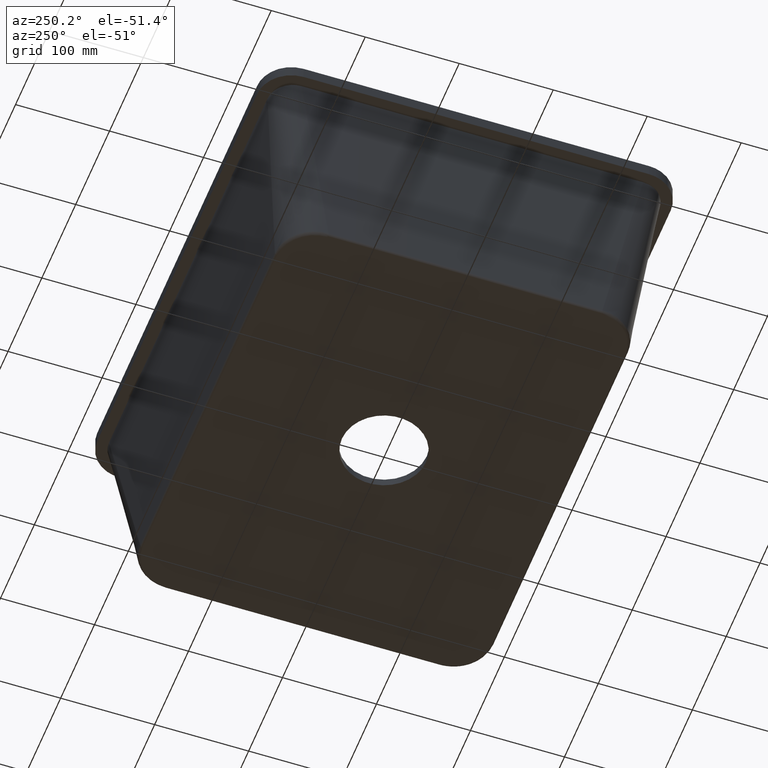
[diagram: clean part render]
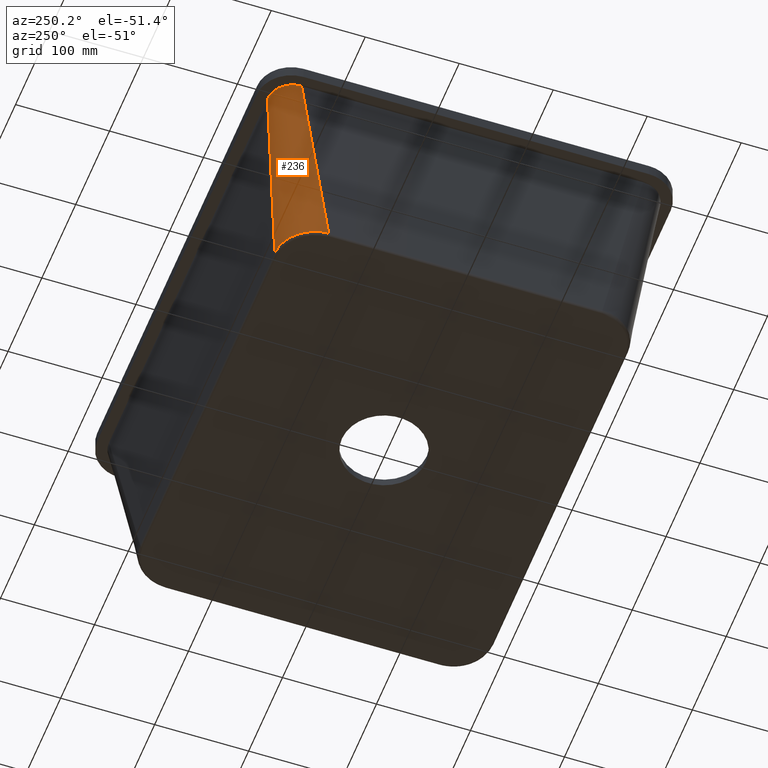
[diagram: same view with one face highlighted and labeled with its STEP entity id]
A machine part, auxiliary view. The second image highlights one B-rep face of the part: STEP entity #236.
In plain terms, the highlighted face is a freeform B-spline surface patch.
Its self-contained STEP definition (entity closure, byte-faithful):
#155=B_SPLINE_SURFACE_WITH_KNOTS('',3,3,((#16675,#16676,#16677,#16678,#16679,
#16680,#16681,#16682,#16683,#16684),(#16685,#16686,#16687,#16688,#16689,
#16690,#16691,#16692,#16693,#16694),(#16695,#16696,#16697,#16698,#16699,
#16700,#16701,#16702,#16703,#16704),(#16705,#16706,#16707,#16708,#16709,
#16710,#16711,#16712,#16713,#16714)),.UNSPECIFIED.,.F.,.F.,.F.,(4,4),(4,
2,2,2,4),(0.,1.),(0.,0.25,0.5,0.75,1.),.UNSPECIFIED.);
#236=ADVANCED_FACE('',(#306),#155,.T.);
#306=FACE_OUTER_BOUND('',#378,.T.);
#378=EDGE_LOOP('',(#730,#731,#732,#733,#734,#735));
#730=ORIENTED_EDGE('',*,*,#1060,.F.);
#731=ORIENTED_EDGE('',*,*,#1021,.T.);
#732=ORIENTED_EDGE('',*,*,#1038,.T.);
#733=ORIENTED_EDGE('',*,*,#1042,.T.);
#734=ORIENTED_EDGE('',*,*,#1061,.F.);
#735=ORIENTED_EDGE('',*,*,#1062,.F.);
#847=VERTEX_POINT('',#15982);
#856=VERTEX_POINT('',#16190);
#865=VERTEX_POINT('',#16397);
#868=VERTEX_POINT('',#16409);
#879=VERTEX_POINT('',#16659);
#880=VERTEX_POINT('',#16670);
#1021=EDGE_CURVE('',#856,#847,#1180,.T.);
#1038=EDGE_CURVE('',#847,#865,#1185,.T.);
#1042=EDGE_CURVE('',#865,#868,#1188,.T.);
#1060=EDGE_CURVE('',#856,#879,#1202,.T.);
#1061=EDGE_CURVE('',#880,#868,#1203,.T.);
#1062=EDGE_CURVE('',#879,#880,#1204,.T.);
#1180=B_SPLINE_CURVE_WITH_KNOTS('',3,(#16191,#16192,#16193,#16194,#16195,
#16196,#16197,#16198,#16199,#16200),.UNSPECIFIED.,.F.,.F.,(4,2,2,2,4),(0.,
0.25,0.5,0.75,1.),.UNSPECIFIED.);
#1185=B_SPLINE_CURVE_WITH_KNOTS('',3,(#16393,#16394,#16395,#16396),
 .UNSPECIFIED.,.F.,.F.,(4,4),(0.,1.),.UNSPECIFIED.);
#1188=B_SPLINE_CURVE_WITH_KNOTS('',3,(#16410,#16411,#16412,#16413),
 .UNSPECIFIED.,.F.,.F.,(4,4),(0.,1.),.UNSPECIFIED.);
#1202=B_SPLINE_CURVE_WITH_KNOTS('',3,(#16651,#16652,#16653,#16654,#16655,
#16656,#16657,#16658),.UNSPECIFIED.,.F.,.F.,(4,2,2,4),(0.,0.284659297360173,
0.954545454545455,1.),.UNSPECIFIED.);
#1203=B_SPLINE_CURVE_WITH_KNOTS('',3,(#16660,#16661,#16662,#16663,#16664,
#16665,#16666,#16667,#16668,#16669),.UNSPECIFIED.,.F.,.F.,(4,2,2,2,4),(0.,
0.25,0.5,0.75,1.),.UNSPECIFIED.);
#1204=B_SPLINE_CURVE_WITH_KNOTS('',3,(#16671,#16672,#16673,#16674),
 .UNSPECIFIED.,.F.,.F.,(4,4),(0.,1.),.UNSPECIFIED.);
#15982=CARTESIAN_POINT('',(-240.858488755988,145.678859501032,-210.301110715676));
#16190=CARTESIAN_POINT('',(-198.805185604876,187.769871966777,-210.309423620474));
#16191=CARTESIAN_POINT('',(-198.805185604876,187.769871966776,-210.309423620474));
#16192=CARTESIAN_POINT('',(-204.636013927469,187.762406410837,-210.381419482213));
#16193=CARTESIAN_POINT('',(-210.320129027172,186.53786679714,-210.444259691139));
#16194=CARTESIAN_POINT('',(-220.450157708189,182.18859490304,-210.514803546419));
#16195=CARTESIAN_POINT('',(-224.886784518648,179.097653143368,-210.524022454617));
#16196=CARTESIAN_POINT('',(-232.169132503345,171.815486642678,-210.52262285694));
#16197=CARTESIAN_POINT('',(-235.258655507471,167.383575708731,-210.511993057559));
#16198=CARTESIAN_POINT('',(-239.618382160683,157.238736954726,-210.438689009317));
#16199=CARTESIAN_POINT('',(-240.85108658701,151.53761313181,-210.374486940463));
#16200=CARTESIAN_POINT('',(-240.858488755988,145.678859501033,-210.301110715671));
#16393=CARTESIAN_POINT('',(-240.858488755987,145.67885950103,-210.301110715686));
#16394=CARTESIAN_POINT('',(-242.342657451127,148.359136166055,-195.588842444041));
#16395=CARTESIAN_POINT('',(-243.826826146267,151.039412831081,-180.876574172395));
#16396=CARTESIAN_POINT('',(-245.310994841408,153.719689496106,-166.164305900748));
#16397=CARTESIAN_POINT('',(-245.310994841408,153.719689496106,-166.164305900748));
#16409=CARTESIAN_POINT('',(-260.762158715936,181.623117264112,-12.9999999996923));
#16410=CARTESIAN_POINT('',(-245.310994841408,153.719689496106,-166.164305900748));
#16411=CARTESIAN_POINT('',(-250.461382799603,163.020832085477,-115.109537266869));
#16412=CARTESIAN_POINT('',(-255.6117707578,172.32197467485,-64.0547686329767));
#16413=CARTESIAN_POINT('',(-260.762158715998,181.623117264224,-12.9999999990768));
#16651=CARTESIAN_POINT('',(-195.03983363599,185.592574121763,-231.306712487531));
#16652=CARTESIAN_POINT('',(-198.93133287072,187.842816056027,-209.60596997189));
#16653=CARTESIAN_POINT('',(-202.82283210545,190.09305799029,-187.90522745625));
#16654=CARTESIAN_POINT('',(-215.87216139252,197.638773973917,-115.136323293755));
#16655=CARTESIAN_POINT('',(-225.029991444864,202.934248023283,-64.0681616468748));
#16656=CARTESIAN_POINT('',(-234.809218129924,208.589041881393,-9.5348140874997));
#16657=CARTESIAN_POINT('',(-235.430614762641,208.948361690138,-6.06962817499864));
#16658=CARTESIAN_POINT('',(-236.052011395359,209.307681498882,-2.60444226249758));
#16659=CARTESIAN_POINT('',(-206.71433134018,192.343299924553,-166.204484940611));
#16660=CARTESIAN_POINT('',(-234.187821498578,208.229722072649,-13.));
#16661=CARTESIAN_POINT('',(-237.700678009893,208.229722072474,-13.));
#16662=CARTESIAN_POINT('',(-241.150329531471,207.551931600458,-13.));
#16663=CARTESIAN_POINT('',(-247.598485749476,204.897022802823,-13.));
#16664=CARTESIAN_POINT('',(-250.549154775325,202.924650064215,-13.));
#16665=CARTESIAN_POINT('',(-255.456585887581,198.012885427086,-13.));
#16666=CARTESIAN_POINT('',(-257.434042068032,195.042210005115,-13.));
#16667=CARTESIAN_POINT('',(-260.071435975272,188.632513707149,-13.));
#16668=CARTESIAN_POINT('',(-260.762158715905,185.137490325186,-12.9999999999999));
#16669=CARTESIAN_POINT('',(-260.762158715905,181.623117264056,-12.9999999999999));
#16670=CARTESIAN_POINT('',(-234.187821497974,208.229722072681,-12.9999999996953));
#16671=CARTESIAN_POINT('',(-206.71433134018,192.343299924553,-166.20448494061));
#16672=CARTESIAN_POINT('',(-215.872161392574,197.638773973949,-115.13632329345));
#16673=CARTESIAN_POINT('',(-225.029991444973,202.934248023347,-64.0681616462648));
#16674=CARTESIAN_POINT('',(-234.18782149737,208.229722072744,-12.9999999990858));
#16675=CARTESIAN_POINT('',(-234.587658817466,208.460926205211,-10.7703280376688));
#16676=CARTESIAN_POINT('',(-238.053452120338,208.426041503719,-11.106746941478));
#16677=CARTESIAN_POINT('',(-241.460329617782,207.715986453955,-11.365918644155));
#16678=CARTESIAN_POINT('',(-247.88187202049,204.986213610184,-11.7246567793823));
#16679=CARTESIAN_POINT('',(-250.740838924545,203.037023832439,-11.8084554819955));
#16680=CARTESIAN_POINT('',(-255.60457699773,198.159971843858,-11.7997975704396));
#16681=CARTESIAN_POINT('',(-257.542599068394,195.298779424922,-11.7074986676915));
#16682=CARTESIAN_POINT('',(-260.252594257756,188.889641454796,-11.3347755969261));
#16683=CARTESIAN_POINT('',(-260.956840553049,185.491567433102,-11.0701577758255));
#16684=CARTESIAN_POINT('',(-260.991140524686,182.036638045622,-10.7301489977906));
#16685=CARTESIAN_POINT('',(-222.587113463344,201.521664814929,-77.6907432989491));
#16686=CARTESIAN_POINT('',(-226.711081335758,201.487318612108,-78.0219690629193));
#16687=CARTESIAN_POINT('',(-230.851422529025,200.634382360543,-78.2880275260253));
#16688=CARTESIAN_POINT('',(-238.5078606257,197.392578114362,-78.6432147349878));
#16689=CARTESIAN_POINT('',(-241.968567989385,195.04225436381,-78.7286227064174));
#16690=CARTESIAN_POINT('',(-247.790311317953,189.209082716034,-78.7204938040027));
#16691=CARTESIAN_POINT('',(-250.131427463454,185.746296159978,-78.6270186635071));
#16692=CARTESIAN_POINT('',(-253.358197551984,178.09624427191,-78.2579053043117));
#16693=CARTESIAN_POINT('',(-254.206383224166,173.962640596395,-77.9860949627642));
#16694=CARTESIAN_POINT('',(-254.240231449163,169.845096664862,-77.6505642590769));
#16695=CARTESIAN_POINT('',(-210.586568109221,194.582403424646,-144.611158560227));
#16696=CARTESIAN_POINT('',(-215.394769319164,194.548116311664,-144.941814477304));
#16697=CARTESIAN_POINT('',(-220.227501704835,193.559391263366,-145.208628129717));
#16698=CARTESIAN_POINT('',(-229.150294902785,189.791709546853,-145.563426752224));
#16699=CARTESIAN_POINT('',(-233.194918386404,187.050045760701,-145.649011421373));
#16700=CARTESIAN_POINT('',(-239.986746496869,180.246281869244,-145.640938441159));
#16701=CARTESIAN_POINT('',(-242.719056862351,176.199343210658,-145.547337406042));
#16702=CARTESIAN_POINT('',(-246.47157453337,167.282043029561,-145.178614835019));
#16703=CARTESIAN_POINT('',(-247.455523719121,162.455819754108,-144.906018841794));
#16704=CARTESIAN_POINT('',(-247.489322373641,157.653555284102,-144.570979520351));
#16705=CARTESIAN_POINT('',(-198.586022755101,187.643142034365,-211.531573821485));
#16706=CARTESIAN_POINT('',(-204.076202384456,187.608955495442,-211.86125982874));
#16707=CARTESIAN_POINT('',(-209.604883405916,186.483825697499,-212.129359502053));
#16708=CARTESIAN_POINT('',(-219.791302410431,182.19146928479,-212.483495355479));
#16709=CARTESIAN_POINT('',(-224.421386407497,179.057614430717,-212.569380629046));
#16710=CARTESIAN_POINT('',(-232.182260279314,171.284513216193,-212.561405589653));
#16711=CARTESIAN_POINT('',(-235.306786422288,166.651908614457,-212.467586156579));
#16712=CARTESIAN_POINT('',(-239.584284264088,156.469650068099,-212.099535614514));
#16713=CARTESIAN_POINT('',(-240.704699015198,150.947086035212,-211.825597744228));
#16714=CARTESIAN_POINT('',(-240.738413298122,145.462013903349,-211.491394781597));